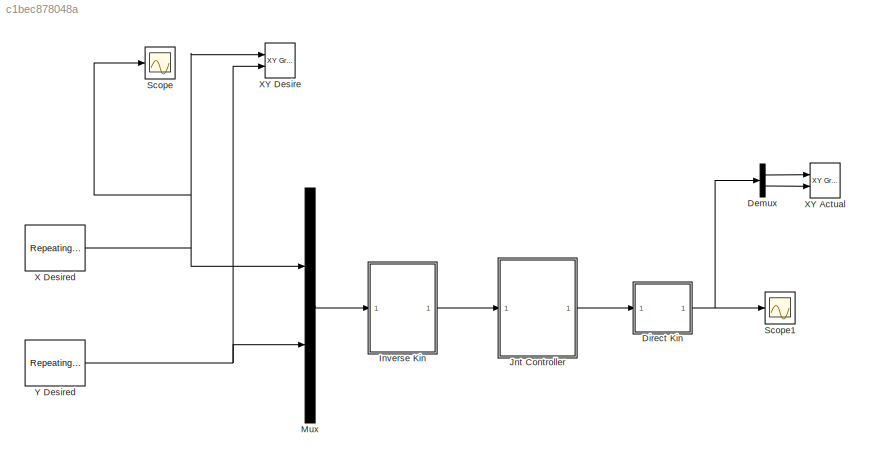
MODEL slx_c1bec878048a
KIND model
CONFIG AbsTol = auto
CONFIG EnableMultiTasking = off
CONFIG FixedStep = auto
CONFIG MaxStep = auto
CONFIG MinStep = auto
CONFIG RelTol = 1e-3
CONFIG SampleTimeConstraint = Unconstrained
CONFIG Solver = VariableStepAuto
CONFIG SolverName = VariableStepAuto
CONFIG StartTime = 0.0
CONFIG StopTime = 10.0
BLOCK [Demux] Demux
  DisplayOption = bar
  Outputs = 2
  Ports = [1, 2]
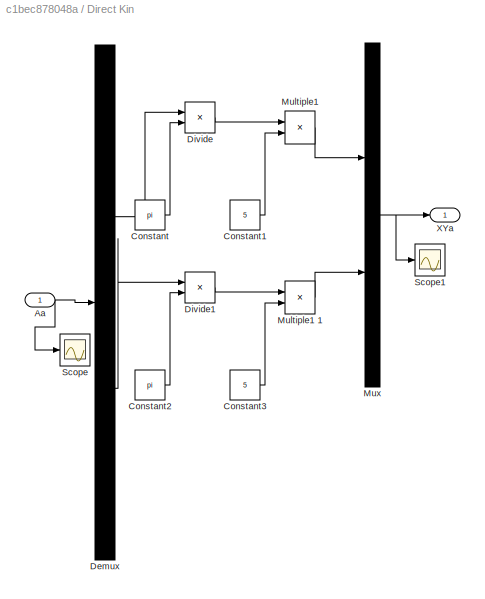
BLOCK [SubSystem] Direct Kin
  Ports = [1, 1]
  RequestExecContextInheritance = off
  Variant = off
BLOCK [Inport] Direct Kin/Aa
  IconDisplay = Port number
BLOCK [Constant] Direct Kin/Constant
  Value = pi
BLOCK [Constant] Direct Kin/Constant1
  Value = 5
BLOCK [Constant] Direct Kin/Constant2
  Value = pi
BLOCK [Constant] Direct Kin/Constant3
  Value = 5
BLOCK [Demux] Direct Kin/Demux
  DisplayOption = bar
  Outputs = 2
  Ports = [1, 2]
BLOCK [Product] Direct Kin/Divide
  InputSameDT = off
  Inputs = */
  OutDataTypeStr = Inherit: Inherit via internal rule
  Ports = [2, 1]
  RndMeth = Floor
  SaturateOnIntegerOverflow = off
BLOCK [Product] Direct Kin/Divide1
  InputSameDT = off
  Inputs = */
  OutDataTypeStr = Inherit: Inherit via internal rule
  Ports = [2, 1]
  RndMeth = Floor
  SaturateOnIntegerOverflow = off
BLOCK [Product] Direct Kin/Multiple1 
  InputSameDT = off
  Inputs = **
  OutDataTypeStr = Inherit: Inherit via internal rule
  Ports = [2, 1]
  RndMeth = Floor
  SaturateOnIntegerOverflow = off
BLOCK [Product] Direct Kin/Multiple1 1
  InputSameDT = off
  Inputs = **
  OutDataTypeStr = Inherit: Inherit via internal rule
  Ports = [2, 1]
  RndMeth = Floor
  SaturateOnIntegerOverflow = off
BLOCK [Mux] Direct Kin/Mux
  DisplayOption = bar
  Inputs = 2
  Ports = [2, 1]
BLOCK [Scope] Direct Kin/Scope
  NumInputPorts = 1
  Ports = [1]
  ScopeSpecificationString = Simulink.scopes.TimeScopeBlockCfg('CurrentConfiguration', extmgr.ConfigurationSet(extmgr.Configuration('Core','General UI',true),extmgr.Configuration('Core','Source UI',true),extmgr.Configuration('Sources','WiredSimulink',true,'DataLoggingVariableName','ScopeData2'),extmgr.Configuration('Visuals','Time Domain',true,'SerializedDisplays',{struct('MinYLimReal','-0.79059','MaxYLimReal','3.93331','YLab...<+1403ch>
BLOCK [Scope] Direct Kin/Scope1
  NumInputPorts = 1
  Ports = [1]
  ScopeSpecificationString = Simulink.scopes.TimeScopeBlockCfg('CurrentConfiguration', extmgr.ConfigurationSet(extmgr.Configuration('Core','General UI',true),extmgr.Configuration('Core','Source UI',true),extmgr.Configuration('Sources','WiredSimulink',true,'DataLoggingVariableName','ScopeData2'),extmgr.Configuration('Visuals','Time Domain',true,'SerializedDisplays',{struct('MinYLimReal','-12.87269','MaxYLimReal','115.85424','Y...<+1425ch>
BLOCK [Outport] Direct Kin/XYa
  IconDisplay = Port number
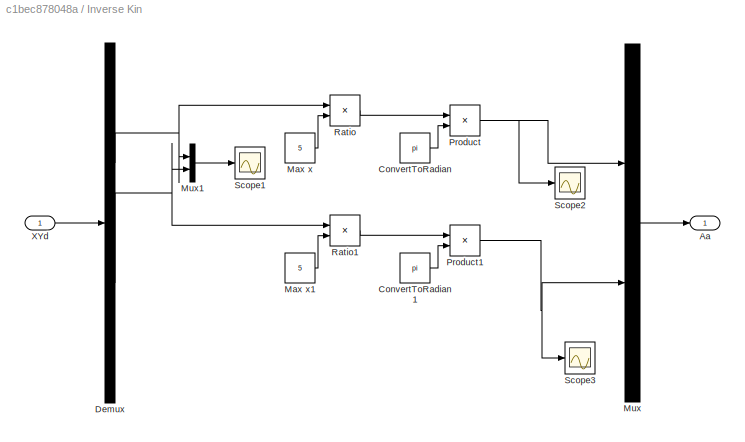
BLOCK [SubSystem] Inverse Kin
  Ports = [1, 1]
  RequestExecContextInheritance = off
  Variant = off
BLOCK [Constant] Inverse Kin/ ConvertToRadian 
  Value = pi
BLOCK [Constant] Inverse Kin/ ConvertToRadian 1
  Value = pi
BLOCK [Outport] Inverse Kin/Aa
  IconDisplay = Port number
BLOCK [Demux] Inverse Kin/Demux
  DisplayOption = bar
  Outputs = 2
  Ports = [1, 2]
BLOCK [Constant] Inverse Kin/Max x
  Value = 5
BLOCK [Constant] Inverse Kin/Max x1
  Value = 5
BLOCK [Mux] Inverse Kin/Mux
  DisplayOption = bar
  Inputs = 2
  Ports = [2, 1]
BLOCK [Mux] Inverse Kin/Mux1
  DisplayOption = bar
  Inputs = 2
  Ports = [2, 1]
BLOCK [Product] Inverse Kin/Product
  InputSameDT = off
  OutDataTypeStr = Inherit: Inherit via internal rule
  Ports = [2, 1]
  RndMeth = Floor
  SaturateOnIntegerOverflow = off
BLOCK [Product] Inverse Kin/Product1
  InputSameDT = off
  OutDataTypeStr = Inherit: Inherit via internal rule
  Ports = [2, 1]
  RndMeth = Floor
  SaturateOnIntegerOverflow = off
BLOCK [Product] Inverse Kin/Ratio
  InputSameDT = off
  Inputs = */
  OutDataTypeStr = Inherit: Inherit via internal rule
  Ports = [2, 1]
  RndMeth = Floor
  SaturateOnIntegerOverflow = off
BLOCK [Product] Inverse Kin/Ratio1
  InputSameDT = off
  Inputs = */
  OutDataTypeStr = Inherit: Inherit via internal rule
  Ports = [2, 1]
  RndMeth = Floor
  SaturateOnIntegerOverflow = off
BLOCK [Scope] Inverse Kin/Scope1
  NumInputPorts = 1
  Ports = [1]
  ScopeSpecificationString = Simulink.scopes.TimeScopeBlockCfg('CurrentConfiguration', extmgr.ConfigurationSet(extmgr.Configuration('Core','General UI',true),extmgr.Configuration('Core','Source UI',true),extmgr.Configuration('Sources','WiredSimulink',true,'DataLoggingVariableName','ScopeData1'),extmgr.Configuration('Visuals','Time Domain',true,'SerializedDisplays',{struct('MinYLimReal','-0.625','MaxYLimReal','5.625','YLabelRe...<+1443ch>
BLOCK [Scope] Inverse Kin/Scope2
  NumInputPorts = 1
  Ports = [1]
  ScopeSpecificationString = Simulink.scopes.TimeScopeBlockCfg('CurrentConfiguration', extmgr.ConfigurationSet(extmgr.Configuration('Core','General UI',true),extmgr.Configuration('Core','Source UI',true),extmgr.Configuration('Sources','WiredSimulink',true,'DataLoggingVariableName','ScopeData1'),extmgr.Configuration('Visuals','Time Domain',true,'SerializedDisplays',{struct('MinYLimReal','-0.7854','MaxYLimReal','7.06858','YLabe...<+1443ch>
BLOCK [Scope] Inverse Kin/Scope3
  NumInputPorts = 1
  Ports = [1]
  ScopeSpecificationString = Simulink.scopes.TimeScopeBlockCfg('CurrentConfiguration', extmgr.ConfigurationSet(extmgr.Configuration('Core','General UI',true),extmgr.Configuration('Core','Source UI',true),extmgr.Configuration('Sources','WiredSimulink',true,'DataLoggingVariableName','ScopeData2'),extmgr.Configuration('Visuals','Time Domain',true,'SerializedDisplays',{struct('MinYLimReal','-0.7854','MaxYLimReal','7.06858','YLabe...<+1444ch>
BLOCK [Inport] Inverse Kin/XYd 
  IconDisplay = Port number
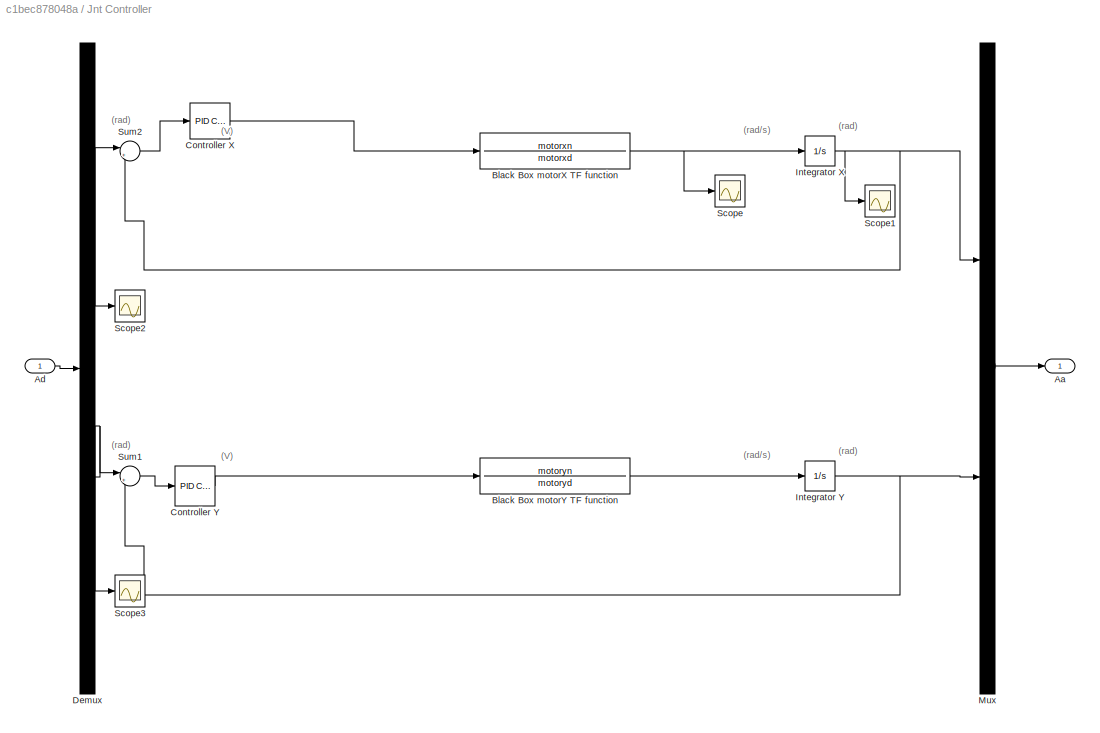
BLOCK [SubSystem] Jnt Controller
  Ports = [1, 1]
  RequestExecContextInheritance = off
  Variant = off
BLOCK [Outport] Jnt Controller/Aa
  IconDisplay = Port number
BLOCK [Inport] Jnt Controller/Ad 
  IconDisplay = Port number
BLOCK [TransferFcn] Jnt Controller/Black Box motorX TF function 
  Denominator = motorxd
  Numerator = motorxn
BLOCK [TransferFcn] Jnt Controller/Black Box motorY TF function 
  Denominator = motoryd
  Numerator = motoryn
BLOCK [Reference] Jnt Controller/Controller X  REF=simulink/Continuous/PID Controller
  Ports = [1, 1]
  SourceBlock = simulink/Continuous/PID Controller
  SourceProductBaseCode = SL
  SourceProductName = Simulink
  SourceType = PID 1dof
BLOCK [Reference] Jnt Controller/Controller Y  REF=simulink/Continuous/PID Controller
  Ports = [1, 1]
  SourceBlock = simulink/Continuous/PID Controller
  SourceProductBaseCode = SL
  SourceProductName = Simulink
  SourceType = PID 1dof
BLOCK [Demux] Jnt Controller/Demux
  DisplayOption = bar
  Outputs = 2
  Ports = [1, 2]
BLOCK [Integrator] Jnt Controller/Integrator X
  Ports = [1, 1]
BLOCK [Integrator] Jnt Controller/Integrator Y
  Ports = [1, 1]
BLOCK [Mux] Jnt Controller/Mux
  DisplayOption = bar
  Inputs = 2
  Ports = [2, 1]
BLOCK [Scope] Jnt Controller/Scope
  NumInputPorts = 1
  Ports = [1]
  ScopeSpecificationString = Simulink.scopes.TimeScopeBlockCfg('CurrentConfiguration', extmgr.ConfigurationSet(extmgr.Configuration('Core','General UI',true),extmgr.Configuration('Core','Source UI',true),extmgr.Configuration('Sources','WiredSimulink',true,'DataLoggingVariableName','ScopeData3'),extmgr.Configuration('Visuals','Time Domain',true,'SerializedDisplays',{struct('MinYLimReal','-1.68569','MaxYLimReal','13.48099','YLa...<+1426ch>
BLOCK [Scope] Jnt Controller/Scope1
  NumInputPorts = 1
  Ports = [1]
  ScopeSpecificationString = Simulink.scopes.TimeScopeBlockCfg('CurrentConfiguration', extmgr.ConfigurationSet(extmgr.Configuration('Core','General UI',true),extmgr.Configuration('Core','Source UI',true),extmgr.Configuration('Sources','WiredSimulink',true,'DataLoggingVariableName','ScopeData4'),extmgr.Configuration('Visuals','Time Domain',true,'SerializedDisplays',{struct('MinYLimReal','-0.40068','MaxYLimReal','3.60614','YLab...<+1403ch>
BLOCK [Scope] Jnt Controller/Scope2
  NumInputPorts = 1
  Ports = [1]
  ScopeSpecificationString = Simulink.scopes.TimeScopeBlockCfg('CurrentConfiguration', extmgr.ConfigurationSet(extmgr.Configuration('Core','General UI',true),extmgr.Configuration('Core','Source UI',true),extmgr.Configuration('Sources','WiredSimulink',true,'DataLoggingVariableName','ScopeData5'),extmgr.Configuration('Visuals','Time Domain',true,'SerializedDisplays',{struct('MinYLimReal','-0.3927','MaxYLimReal','3.53429','YLabe...<+1397ch>
BLOCK [Scope] Jnt Controller/Scope3
  NumInputPorts = 1
  Ports = [1]
  ScopeSpecificationString = Simulink.scopes.TimeScopeBlockCfg('CurrentConfiguration', extmgr.ConfigurationSet(extmgr.Configuration('Core','General UI',true),extmgr.Configuration('Core','Source UI',true),extmgr.Configuration('Sources','WiredSimulink',true,'DataLoggingVariableName','ScopeData6'),extmgr.Configuration('Visuals','Time Domain',true,'SerializedDisplays',{struct('MinYLimReal','-0.7854','MaxYLimReal','7.06858','YLabe...<+1397ch>
BLOCK [Sum] Jnt Controller/Sum1
  IconShape = round
  InputSameDT = off
  Inputs = |+-
  OutDataTypeStr = Inherit: Inherit via internal rule
  Ports = [2, 1]
  SaturateOnIntegerOverflow = off
BLOCK [Sum] Jnt Controller/Sum2
  IconShape = round
  InputSameDT = off
  Inputs = |+-
  OutDataTypeStr = Inherit: Inherit via internal rule
  Ports = [2, 1]
  SaturateOnIntegerOverflow = off
BLOCK [Mux] Mux
  DisplayOption = bar
  Inputs = 2
  Ports = [2, 1]
BLOCK [Scope] Scope
  NumInputPorts = 1
  Ports = [1]
  ScopeSpecificationString = Simulink.scopes.TimeScopeBlockCfg('CurrentConfiguration', extmgr.ConfigurationSet(extmgr.Configuration('Core','General UI',true),extmgr.Configuration('Core','Source UI',true),extmgr.Configuration('Sources','WiredSimulink',true),extmgr.Configuration('Visuals','Time Domain',true,'SerializedDisplays',{struct('MinYLimReal','-0.625','MaxYLimReal','5.625','YLabelReal','','MinYLimMag','0.00000','MaxYLimM...<+1350ch>
BLOCK [Scope] Scope1
  NumInputPorts = 1
  Ports = [1]
  ScopeSpecificationString = Simulink.scopes.TimeScopeBlockCfg('CurrentConfiguration', extmgr.ConfigurationSet(extmgr.Configuration('Core','General UI',true),extmgr.Configuration('Core','Source UI',true),extmgr.Configuration('Sources','WiredSimulink',true,'DataLoggingVariableName','ScopeData1'),extmgr.Configuration('Visuals','Time Domain',true),extmgr.Configuration('Tools','Plot Navigation',true),extmgr.Configuration('Tools',...<+40ch>
BLOCK [Reference] X Desired  REF=simulink/Sources/Repeating
Sequence
Interpolated
  Ports = [0, 1]
  SourceBlock = simulink/Sources/Repeating\nSequence\nInterpolated
  SourceProductBaseCode = SL
  SourceProductName = Simulink
  SourceType = Repeating Sequence Interpolated
BLOCK [Reference] XY Actual  REF=simulink/Sinks/XY Graph
  Ports = [2]
  SourceBlock = simulink/Sinks/XY Graph
  SourceProductBaseCode = SL
  SourceProductName = Simulink
  SourceType = XY scope.
BLOCK [Reference] XY Desire   REF=simulink/Sinks/XY Graph
  Ports = [2]
  SourceBlock = simulink/Sinks/XY Graph
  SourceProductBaseCode = SL
  SourceProductName = Simulink
  SourceType = XY scope.
BLOCK [Reference] Y Desired  REF=simulink/Sources/Repeating
Sequence
Interpolated
  Ports = [0, 1]
  SourceBlock = simulink/Sources/Repeating\nSequence\nInterpolated
  SourceProductBaseCode = SL
  SourceProductName = Simulink
  SourceType = Repeating Sequence Interpolated
ANNOTATION Jnt Controller: (V)
ANNOTATION Jnt Controller: (rad)
ANNOTATION Jnt Controller: (rad/s)
LINE Demux:1 -> XY Actual:1
LINE Demux:2 -> XY Actual:2
NET Direct Kin/Aa:1 -> Direct Kin/Demux:1, Direct Kin/Scope:1
LINE Direct Kin/Constant1:1 -> Direct Kin/Multiple1 :2
LINE Direct Kin/Constant2:1 -> Direct Kin/Divide1:2
LINE Direct Kin/Constant3:1 -> Direct Kin/Multiple1 1:2
LINE Direct Kin/Constant:1 -> Direct Kin/Divide:2
LINE Direct Kin/Demux:1 -> Direct Kin/Divide:1
LINE Direct Kin/Demux:2 -> Direct Kin/Divide1:1
LINE Direct Kin/Divide1:1 -> Direct Kin/Multiple1 1:1
LINE Direct Kin/Divide:1 -> Direct Kin/Multiple1 :1
LINE Direct Kin/Multiple1 1:1 -> Direct Kin/Mux:2
LINE Direct Kin/Multiple1 :1 -> Direct Kin/Mux:1
NET Direct Kin/Mux:1 -> Direct Kin/Scope1:1, Direct Kin/XYa:1
NET Direct Kin:1 -> Demux:1, Scope1:1
LINE Inverse Kin/ ConvertToRadian 1:1 -> Inverse Kin/Product1:2
LINE Inverse Kin/ ConvertToRadian :1 -> Inverse Kin/Product:2
NET Inverse Kin/Demux:1 -> Inverse Kin/Mux1:1, Inverse Kin/Ratio:1
NET Inverse Kin/Demux:2 -> Inverse Kin/Mux1:2, Inverse Kin/Ratio1:1
LINE Inverse Kin/Max x1:1 -> Inverse Kin/Ratio1:2
LINE Inverse Kin/Max x:1 -> Inverse Kin/Ratio:2
LINE Inverse Kin/Mux1:1 -> Inverse Kin/Scope1:1
LINE Inverse Kin/Mux:1 -> Inverse Kin/Aa:1
NET Inverse Kin/Product1:1 -> Inverse Kin/Mux:2, Inverse Kin/Scope3:1
NET Inverse Kin/Product:1 -> Inverse Kin/Mux:1, Inverse Kin/Scope2:1
LINE Inverse Kin/Ratio1:1 -> Inverse Kin/Product1:1
LINE Inverse Kin/Ratio:1 -> Inverse Kin/Product:1
LINE Inverse Kin/XYd :1 -> Inverse Kin/Demux:1
LINE Inverse Kin:1 -> Jnt Controller:1
LINE Jnt Controller/Ad :1 -> Jnt Controller/Demux:1
NET Jnt Controller/Black Box motorX TF function :1 -> Jnt Controller/Integrator X:1, Jnt Controller/Scope:1
LINE Jnt Controller/Black Box motorY TF function :1 -> Jnt Controller/Integrator Y:1
LINE Jnt Controller/Controller X:1 -> Jnt Controller/Black Box motorX TF function :1
LINE Jnt Controller/Controller Y:1 -> Jnt Controller/Black Box motorY TF function :1
NET Jnt Controller/Demux:1 -> Jnt Controller/Scope2:1, Jnt Controller/Sum2:1
NET Jnt Controller/Demux:2 -> Jnt Controller/Scope3:1, Jnt Controller/Sum1:1
NET Jnt Controller/Integrator X:1 -> Jnt Controller/Mux:1, Jnt Controller/Scope1:1, Jnt Controller/Sum2:2
NET Jnt Controller/Integrator Y:1 -> Jnt Controller/Mux:2, Jnt Controller/Sum1:2
LINE Jnt Controller/Mux:1 -> Jnt Controller/Aa:1
LINE Jnt Controller/Sum1:1 -> Jnt Controller/Controller Y:1
LINE Jnt Controller/Sum2:1 -> Jnt Controller/Controller X:1
LINE Jnt Controller:1 -> Direct Kin:1
LINE Mux:1 -> Inverse Kin:1
NET X Desired:1 -> Mux:1, Scope:1, XY Desire :1
NET Y Desired:1 -> Mux:2, XY Desire :2
note: NET lines group one-source signal fan-out (src -> all destinations, sorted); 1:1 wires keep LINE
